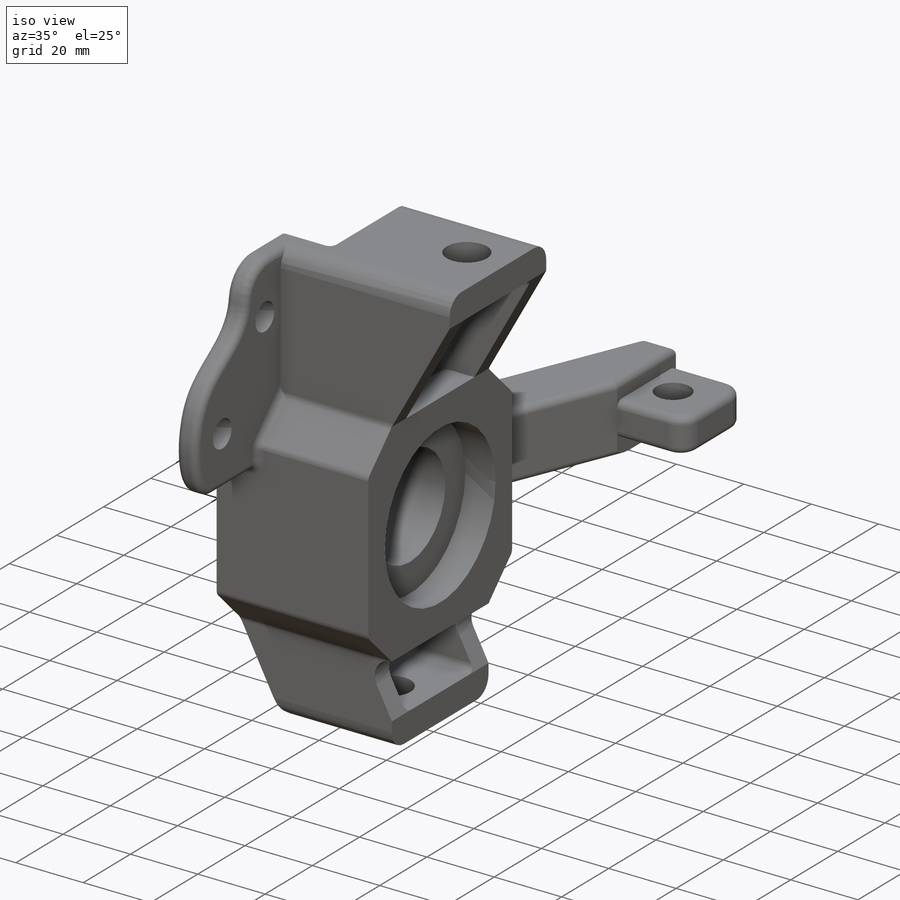
[diagram: iso view]
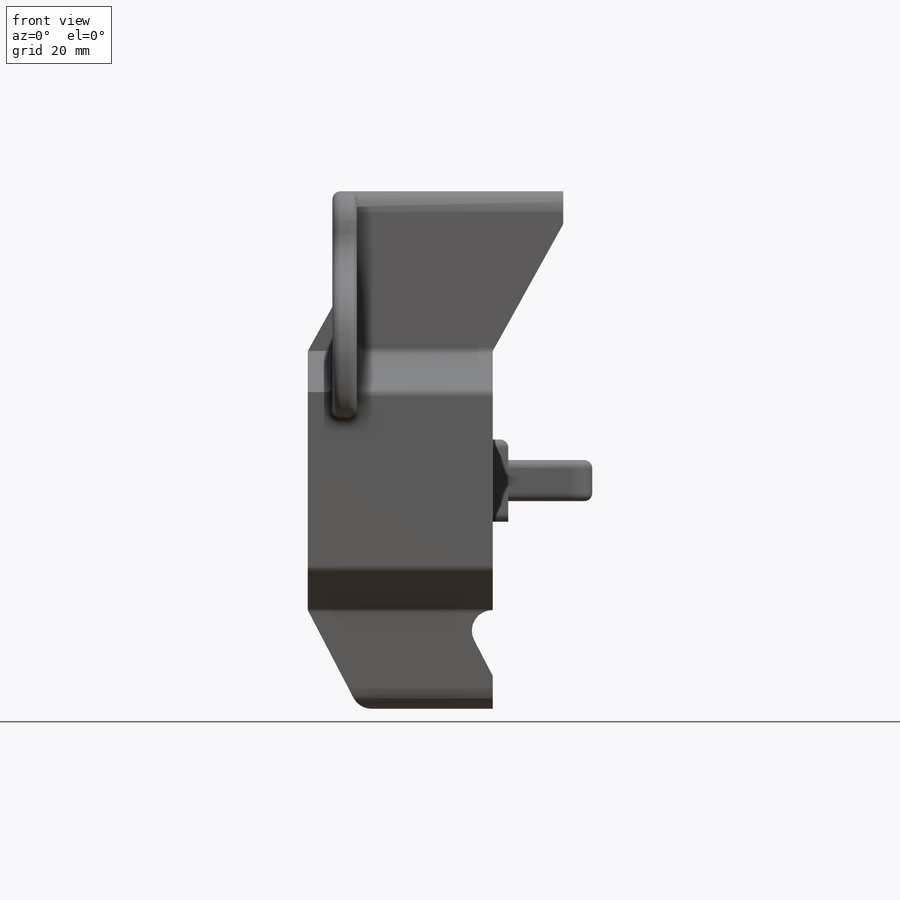
[diagram: front view]
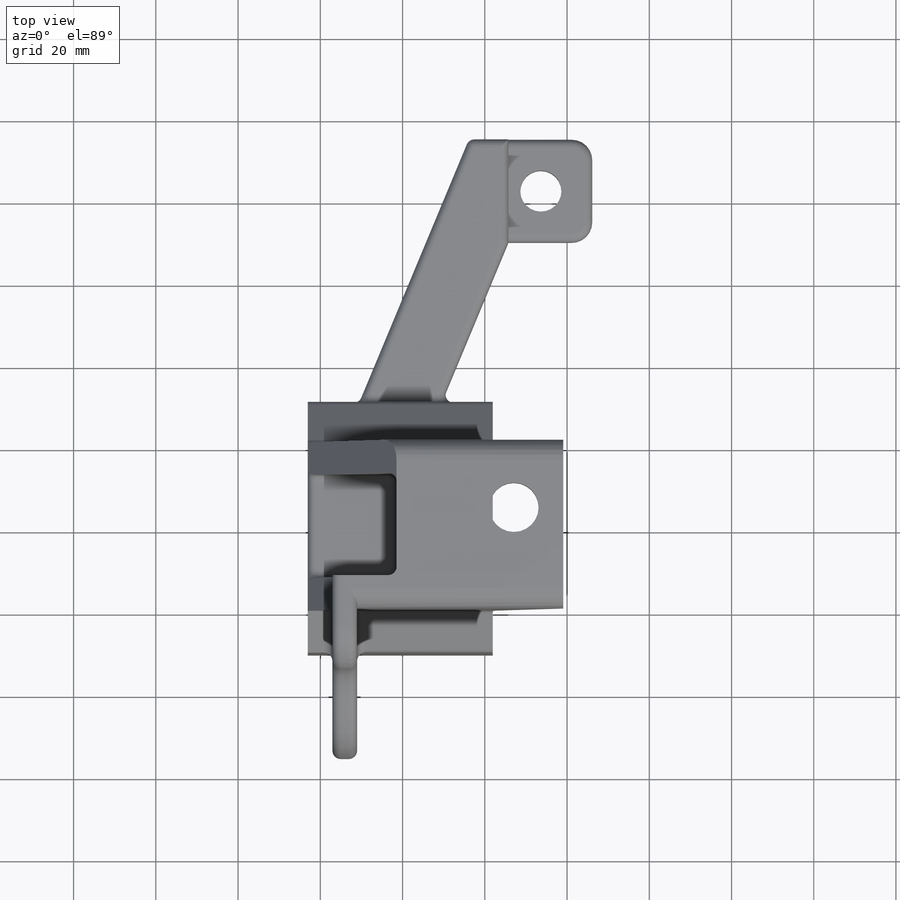
[diagram: top view]
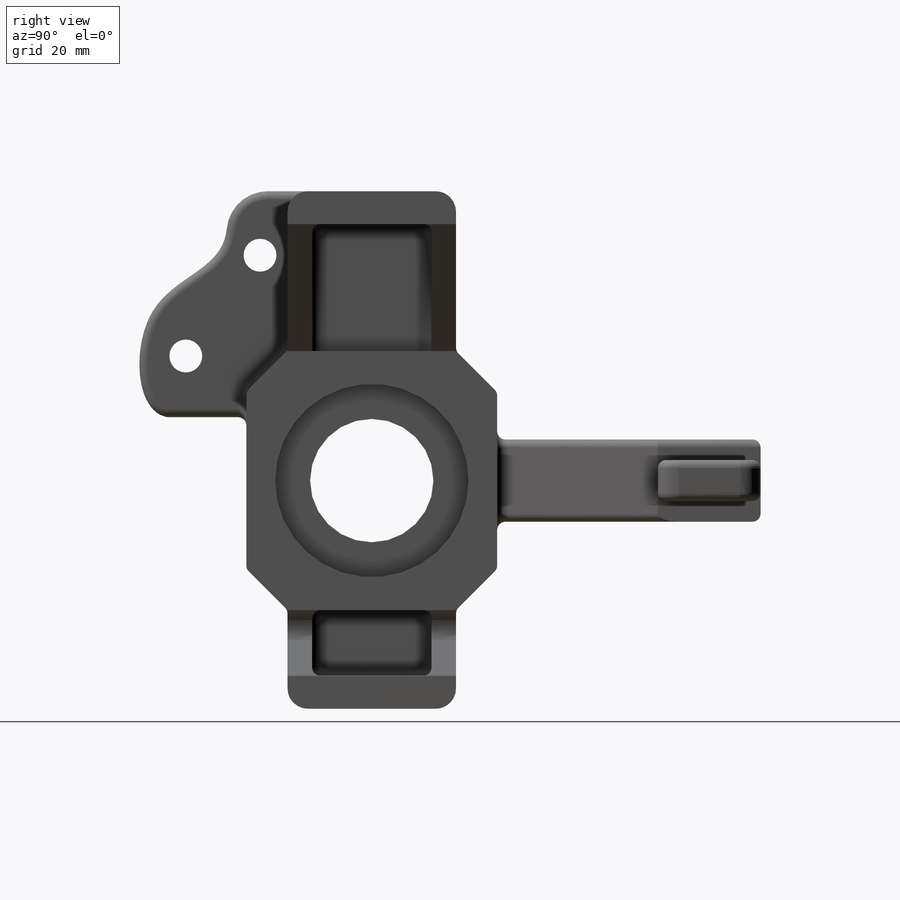
[diagram: right view]
SOLIDWORKS PART (.sldprt)
format: sldprt  version: not decoded by parser v0  size: 791,552 bytes
history: native  units: mm
features: sketch x17, cut_extrude x10, extrude x4, fillet x3, mirror x2, material x1, chamfer x1, plane x1 (+13 scaffold rows collapsed)
feature tree (52):
  scaffold x13  (default folders/planes/origin — collapsed)
  material  "6061-T6 (SS)"
  sketch  "Sketch1"  dims[c1.D1=69.8mm c1.D2=69.8mm c2.D2=83.0deg c2.D3=83.7mm c3.D2=83.7mm c3.D3=~152.355834mm c3.D1=~145.956187mm c4.D1=~6.99542deg c5.D1=12.0mm c5.D2=12.0mm c5.D3=10.0mm c5.D4=10.0mm c6.D2=12.0mm c6.D4=23.5mm c6.D5=8.0mm c6.D6=31.5mm c6.D7=~63.027273mm c7.D4=45.0mm c7.D5=20.0mm c7.D6=23.0mm c7.D2=15.0mm c8.D5=10.0mm c8.D1=~131.884802mm c9.D1=83.0deg c9.D5=~31.349886mm c10.D5=~83.00458deg c10.D6=83.7mm c10.D7=69.8mm c10.D8=20.0mm c11.D8=48.38deg c12.D8=8.0mm c12.D3=8.0mm c12.D2=25.0mm c13.D3=16.0mm c13.D8=8.0mm c13.D9=~27.060118mm c13.D10=5.0mm]
  extrude  "Boss-Extrude1"  Depth=61mm
  sketch  "Sketch2"  dims[D1=~18.068206mm]
  cut_extrude  "Cut-Extrude4"  [1 undecoded]
  sketch  "Sketch5"  dims[D1=~29.330248mm]
  cut_extrude  "Cut-Extrude5"  Depth=9mm
  sketch  "Sketch6"  dims[D1=~25.602122mm]
  cut_extrude  "Cut-Extrude6"  Depth=9mm
  sketch  "Sketch7"
  cut_extrude  "Cut-Extrude7"  Depth=10mm
  mirror  "Mirror5"
  sketch  "Sketch14"  dims[D1=6.0mm]
  sketch  "Sketch23"  dims[D1=6.0mm]
  mirror  "Mirror2"
  chamfer  "Chamfer1"  Distance=10mm Angle=45deg
  sketch  "Sketch17"
  cut_extrude  "Cut-Extrude11"  Depth=25mm
  sketch  "Sketch21"  dims[c1.D3=~6.198484mm c1.D1=~75.899349mm c2.D1=22.62deg c2.D2=88.9mm c2.D3=25.0mm c3.D1=25.0mm c3.D4=70.0mm]
  extrude  "Boss-Extrude2"  Depth=20mm
  sketch  "Sketch22"  dims[D1=5.0mm D2=5.0mm]
  cut_extrude  "Cut-Extrude12"  [1 undecoded]
  sketch  "Sketch25"  dims[c1.D1=~6.342668mm c1.D2=~7.460642mm c2.D1=12.0mm c2.D2=4.0mm]
  sketch  "Sketch26"  dims[c1.D1=~5.75138mm c1.D2=12.0mm c2.D1=12.0mm c2.D3=10.5mm]
  cut_extrude  "Cut-Extrude13"  Depth=22mm
  cut_extrude  "Cut-Extrude14"  Depth=22mm
  plane  "Plane1"  Offset=6mm
  sketch  "Sketch27"  dims[D1=40.0mm]
  extrude  "Boss-Extrude3"  Depth=6mm
  sketch  "Sketch28"  dims[D1=~10.750815mm]
  cut_extrude  "Cut-Extrude15"  Depth=10mm
  fillet  "Fillet4"  Radius=10mm
  sketch  "Sketch29"  dims[D1=~19.742746mm]
  extrude  "Boss-Extrude4"  [1 undecoded]
  fillet  "Fillet1"  Radius=5mm
  fillet  "Fillet5"  Radius=2mm
  sketch  "Sketch30"  dims[D1=8.0mm]
  cut_extrude  "Cut-Extrude16"  Depth=10mm
  sketch  "Sketch32"  dims[D1=~9.370598mm]
decode coverage: 30 of 37 modeling features carry decoded parameters
note: ~ marks probable driven/reference dimensions
note: 3 parameter values undecoded
summary: no parameter record found for 3 features
note: suppression state not decoded; provenance and decode notes live in map.json
